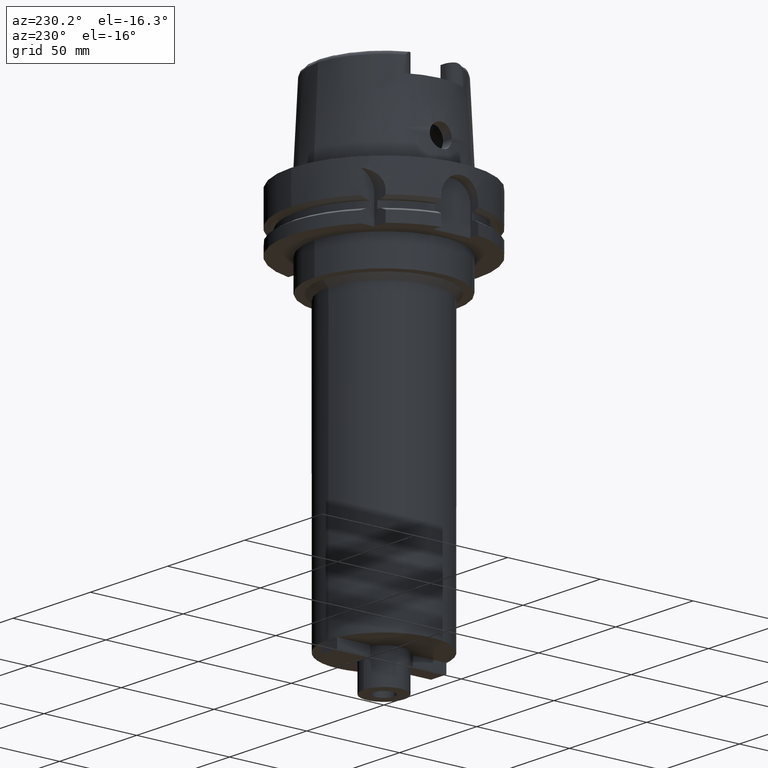
[diagram: clean part render]
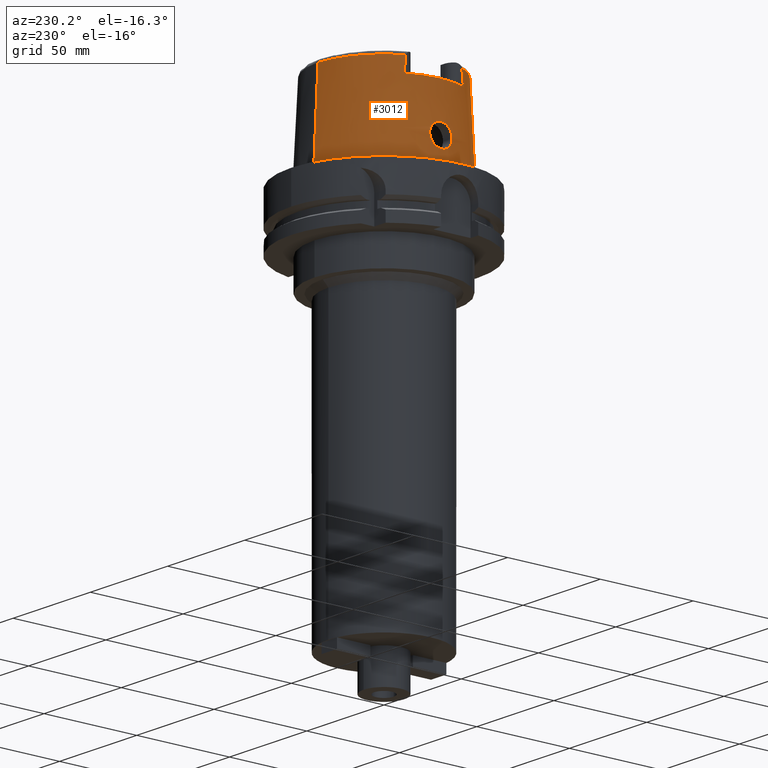
[diagram: same view with one face highlighted and labeled with its STEP entity id]
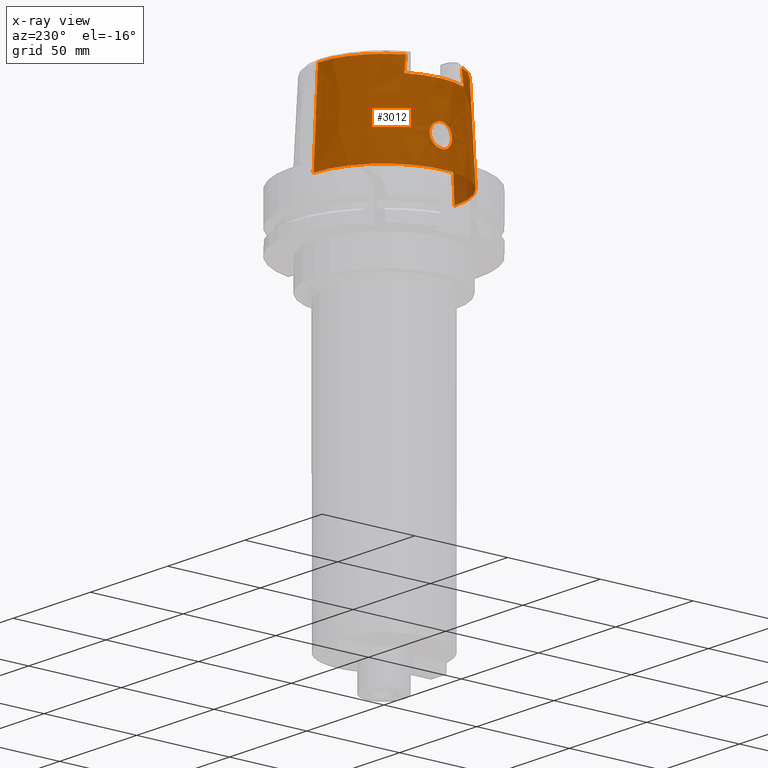
[diagram: x-ray of the same camera — body ghosted, the highlighted face saturated]
A machine part, auxiliary view. The second image highlights one B-rep face of the part: STEP entity #3012.
The next image is the same camera in x-ray: the body ghosted, the highlighted face saturated — about 3% of this face is hidden behind the body in this view.
In plain terms, the highlighted conical surface has half-angle 2.862 deg.
Its self-contained STEP definition (entity closure, byte-faithful):
#130=CARTESIAN_POINT('',(0.E0,0.E0,4.E1));
#131=DIRECTION('',(0.E0,0.E0,-1.E0));
#132=DIRECTION('',(-8.958345712660E-1,-4.443876921391E-1,0.E0));
#133=AXIS2_PLACEMENT_3D('',#130,#131,#132);
#221=CARTESIAN_POINT('',(-3.224999491821E1,-1.506448478791E1,4.809973279647E1));
#279=CARTESIAN_POINT('',(0.E0,0.E0,4.809987853799E1));
#280=DIRECTION('',(0.E0,0.E0,-1.E0));
#281=DIRECTION('',(0.E0,-1.E0,0.E0));
#282=AXIS2_PLACEMENT_3D('',#279,#280,#281);
#287=CARTESIAN_POINT('',(-3.224999876012E1,-1.599794043148E1,4.E1));
#288=CARTESIAN_POINT('',(-3.224999876012E1,-1.589618560063E1,4.090434232027E1));
#289=CARTESIAN_POINT('',(-3.224999990104E1,-1.569149929610E1,4.271014756097E1));
#290=CARTESIAN_POINT('',(-3.225000220619E1,-1.538028254012E1,4.541006273930E1));
#291=CARTESIAN_POINT('',(-3.224999491821E1,-1.517027182478E1,4.720433962099E1));
#292=CARTESIAN_POINT('',(-3.224999491821E1,-1.506448478791E1,4.809973279647E1));
#297=DIRECTION('',(5.154182075151E-5,-4.993927430816E-2,-9.987522546783E-1));
#298=VECTOR('',#297,4.815996991514E1);
#299=CARTESIAN_POINT('',(-2.482252536761E-3,-3.559494263425E1,
4.809987853799E1));
#300=LINE('',#299,#298);
#304=CARTESIAN_POINT('',(-3.225000136841E1,1.506443229447E1,4.809991911510E1));
#305=CARTESIAN_POINT('',(-3.225000136841E1,1.517024628275E1,4.720430028278E1));
#306=CARTESIAN_POINT('',(-3.225000007421E1,1.538032523946E1,4.541024581582E1));
#307=CARTESIAN_POINT('',(-3.224999768767E1,1.569154926814E1,4.271027467579E1));
#308=CARTESIAN_POINT('',(-3.225000534596E1,1.589614940559E1,4.090439636549E1));
#309=CARTESIAN_POINT('',(-3.225000534596E1,1.599791057085E1,4.E1));
#314=CARTESIAN_POINT('',(-3.755000165825E1,1.432651546991E-13,9.E0));
#315=CARTESIAN_POINT('',(-3.755000165825E1,-5.180820580190E-1,9.E0));
#316=CARTESIAN_POINT('',(-3.752123900372E1,-1.555471630250E0,9.135508208903E0));
#317=CARTESIAN_POINT('',(-3.740151852966E1,-3.004812628698E0,9.728029831892E0));
#318=CARTESIAN_POINT('',(-3.722750441793E1,-4.269439729661E0,1.068600255928E1));
#319=CARTESIAN_POINT('',(-3.703612608895E1,-5.245133597128E0,1.194461863016E1));
#320=CARTESIAN_POINT('',(-3.686635251454E1,-5.862208889706E0,1.342386732253E1));
#321=CARTESIAN_POINT('',(-3.675195940148E1,-6.068924555316E0,1.500356552674E1));
#322=CARTESIAN_POINT('',(-3.670699645883E1,-5.862092105368E0,1.656938215103E1));
#323=CARTESIAN_POINT('',(-3.672673361111E1,-5.257848039641E0,1.802962911104E1));
#324=CARTESIAN_POINT('',(-3.679090955258E1,-4.301580726864E0,1.928062722693E1));
#325=CARTESIAN_POINT('',(-3.687054035592E1,-3.044339580910E0,2.025093050935E1));
#326=CARTESIAN_POINT('',(-3.693405053435E1,-1.574506161859E0,2.086164752443E1));
#327=CARTESIAN_POINT('',(-3.694998175923E1,-5.247291007409E-1,2.1E1));
#328=CARTESIAN_POINT('',(-3.694998175923E1,0.E0,2.1E1));
#333=CARTESIAN_POINT('',(-3.694998175923E1,0.E0,2.1E1));
#334=CARTESIAN_POINT('',(-3.694998175923E1,5.230136545179E-1,2.1E1));
#335=CARTESIAN_POINT('',(-3.693414000234E1,1.570205301602E0,2.086238855419E1));
#336=CARTESIAN_POINT('',(-3.687093953941E1,3.037128318650E0,2.025500149627E1));
#337=CARTESIAN_POINT('',(-3.679109092625E1,4.299147507476E0,1.928419818101E1));
#338=CARTESIAN_POINT('',(-3.672645757495E1,5.261736129134E0,1.802437781593E1));
#339=CARTESIAN_POINT('',(-3.670710362413E1,5.864129126624E0,1.656047815121E1));
#340=CARTESIAN_POINT('',(-3.675214520336E1,6.067590095848E0,1.500437004441E1));
#341=CARTESIAN_POINT('',(-3.686482010375E1,5.865504370148E0,1.344303281628E1));
#342=CARTESIAN_POINT('',(-3.703191240453E1,5.262605839709E0,1.197677572474E1));
#343=CARTESIAN_POINT('',(-3.722288247158E1,4.297382660188E0,1.071305145333E1));
#344=CARTESIAN_POINT('',(-3.739934614395E1,3.027363520018E0,9.738852220617E0));
#345=CARTESIAN_POINT('',(-3.752127526940E1,1.559600738697E0,9.135271869564E0));
#346=CARTESIAN_POINT('',(-3.755000165825E1,5.184911668046E-1,9.E0));
#347=CARTESIAN_POINT('',(-3.755000165825E1,1.432651546991E-13,9.E0));
#362=DIRECTION('',(-5.154182075159E-5,4.993927430816E-2,-9.987522546783E-1));
#363=VECTOR('',#362,4.815996991514E1);
#364=CARTESIAN_POINT('',(2.482252536765E-3,3.559494263425E1,4.809987853799E1));
#365=LINE('',#364,#363);
#2065=CARTESIAN_POINT('',(0.E0,0.E0,1.023181539495E-12));
#2066=DIRECTION('',(0.E0,0.E0,1.E0));
#2067=DIRECTION('',(0.E0,1.E0,0.E0));
#2068=AXIS2_PLACEMENT_3D('',#2065,#2066,#2067);
#2394=CARTESIAN_POINT('',(-3.225000136841E1,1.506443229447E1,4.809991911510E1));
#2399=CARTESIAN_POINT('',(0.E0,0.E0,4.809987853799E1));
#2400=DIRECTION('',(0.E0,0.E0,-1.E0));
#2401=DIRECTION('',(-9.060276961631E-1,4.232183996300E-1,0.E0));
#2402=AXIS2_PLACEMENT_3D('',#2399,#2400,#2401);
#2486=CARTESIAN_POINT('',(-3.224999876012E1,-1.599794043148E1,4.E1));
#2487=VERTEX_POINT('',#2486);
#2488=CARTESIAN_POINT('',(-3.224999999999E1,1.599793480981E1,4.E1));
#2489=VERTEX_POINT('',#2488);
#2491=VERTEX_POINT('',#2394);
#2492=CARTESIAN_POINT('',(0.E0,3.559494289391E1,4.809987853799E1));
#2493=VERTEX_POINT('',#2492);
#2497=VERTEX_POINT('',#221);
#2500=CARTESIAN_POINT('',(1.065814103640E-14,-3.559494289391E1,
4.809987853799E1));
#2501=VERTEX_POINT('',#2500);
#2502=CARTESIAN_POINT('',(0.E0,-3.800001658252E1,6.039613253961E-13));
#2503=VERTEX_POINT('',#2502);
#2504=CARTESIAN_POINT('',(0.E0,3.800001658252E1,1.023181539495E-12));
#2505=VERTEX_POINT('',#2504);
#2506=VERTEX_POINT('',#314);
#2507=VERTEX_POINT('',#328);
#2986=CARTESIAN_POINT('',(0.E0,0.E0,2.404993926900E1));
#2987=DIRECTION('',(0.E0,0.E0,-1.E0));
#2988=DIRECTION('',(0.E0,-1.E0,0.E0));
#2989=AXIS2_PLACEMENT_3D('',#2986,#2987,#2988);
#2990=CONICAL_SURFACE('',#2989,3.679747973821E1,2.8625E0);
#2991=ORIENTED_EDGE('',*,*,#2895,.F.);
#2992=ORIENTED_EDGE('',*,*,#2978,.T.);
#2993=ORIENTED_EDGE('',*,*,#2968,.F.);
#2995=ORIENTED_EDGE('',*,*,#2994,.T.);
#2997=ORIENTED_EDGE('',*,*,#2996,.F.);
#2999=ORIENTED_EDGE('',*,*,#2998,.F.);
#3001=ORIENTED_EDGE('',*,*,#3000,.F.);
#3003=ORIENTED_EDGE('',*,*,#3002,.T.);
#3004=EDGE_LOOP('',(#2991,#2992,#2993,#2995,#2997,#2999,#3001,#3003));
#3005=FACE_OUTER_BOUND('',#3004,.F.);
#3007=ORIENTED_EDGE('',*,*,#3006,.T.);
#3009=ORIENTED_EDGE('',*,*,#3008,.T.);
#3010=EDGE_LOOP('',(#3007,#3009));
#3011=FACE_BOUND('',#3010,.F.);
#134=CIRCLE('',#133,3.599995025244E1);
#283=CIRCLE('',#282,3.559494289391E1);
#293=B_SPLINE_CURVE_WITH_KNOTS('',3,(#287,#288,#289,#290,#291,#292),
.UNSPECIFIED.,.F.,.F.,(4,1,1,4),(0.E0,3.333333333333E-1,6.666666666667E-1,1.E0),
.UNSPECIFIED.);
#310=B_SPLINE_CURVE_WITH_KNOTS('',3,(#304,#305,#306,#307,#308,#309),
.UNSPECIFIED.,.F.,.F.,(4,1,1,4),(0.E0,3.333333333333E-1,6.666666666667E-1,1.E0),
.UNSPECIFIED.);
#329=B_SPLINE_CURVE_WITH_KNOTS('',3,(#314,#315,#316,#317,#318,#319,#320,#321,
#322,#323,#324,#325,#326,#327,#328),.UNSPECIFIED.,.F.,.F.,(4,1,1,1,1,1,1,1,1,1,
1,1,4),(0.E0,8.333333333333E-2,1.666666666667E-1,2.5E-1,3.333333333333E-1,
4.166666666667E-1,5.E-1,5.833333333333E-1,6.666666666667E-1,7.5E-1,
8.333333333333E-1,9.166666666667E-1,1.E0),.UNSPECIFIED.);
#348=B_SPLINE_CURVE_WITH_KNOTS('',3,(#333,#334,#335,#336,#337,#338,#339,#340,
#341,#342,#343,#344,#345,#346,#347),.UNSPECIFIED.,.F.,.F.,(4,1,1,1,1,1,1,1,1,1,
1,1,4),(0.E0,8.333333333333E-2,1.666666666667E-1,2.5E-1,3.333333333333E-1,
4.166666666667E-1,5.E-1,5.833333333333E-1,6.666666666667E-1,7.5E-1,
8.333333333333E-1,9.166666666667E-1,1.E0),.UNSPECIFIED.);
#2069=CIRCLE('',#2068,3.800001658252E1);
#2403=CIRCLE('',#2402,3.559494289391E1);
#2895=EDGE_CURVE('',#2487,#2489,#134,.T.);
#2968=EDGE_CURVE('',#2501,#2497,#283,.T.);
#2978=EDGE_CURVE('',#2487,#2497,#293,.T.);
#2994=EDGE_CURVE('',#2501,#2503,#300,.T.);
#2996=EDGE_CURVE('',#2505,#2503,#2069,.T.);
#2998=EDGE_CURVE('',#2493,#2505,#365,.T.);
#3000=EDGE_CURVE('',#2491,#2493,#2403,.T.);
#3002=EDGE_CURVE('',#2491,#2489,#310,.T.);
#3006=EDGE_CURVE('',#2506,#2507,#329,.T.);
#3008=EDGE_CURVE('',#2507,#2506,#348,.T.);
#3012=ADVANCED_FACE('',(#3005,#3011),#2990,.T.);